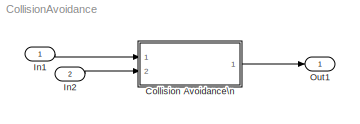
MODEL CollisionAvoidance
KIND model
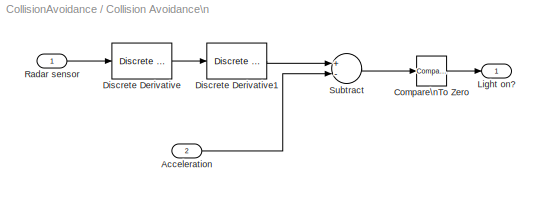
BLOCK [SubSystem] Collision Avoidance\n
  Ports = [2, 1]
  RequestExecContextInheritance = off
  SID = 1
BLOCK [Inport] Collision Avoidance\n/Acceleration
  IconDisplay = Port number
  Port = 2
  SID = 4
BLOCK [Reference] Collision Avoidance\n/Compare\nTo Zero  REF=simulink/Logic and Bit\nOperations/Compare\nTo Zero
  OutDataTypeStr = boolean
  Ports = [1, 1]
  SID = 6
  SourceBlock = simulink/Logic and Bit\nOperations/Compare\nTo Zero
  SourceType = Compare To Zero
  ZeroCross = on
  relop = <=
BLOCK [Reference] Collision Avoidance\n/Discrete Derivative  REF=simulink/Discrete/Discrete Derivative
  DoSatur = off
  ICPrevScaledInput = 0.0
  InputProcessing = Inherited
  LockScale = off
  OutDataType = fixdt(1, 16)
  OutDataTypeStr = Inherit: Inherit via internal rule
  OutMax = []
  OutMin = []
  OutScaling = 2^-10
  OutputDataTypeScalingMode = Inherit via internal rule
  Ports = [1, 1]
  RndMeth = Floor
  SID = 16
  SourceBlock = simulink/Discrete/Discrete Derivative
  SourceType = Discrete Derivative
  gainval = 1.0
BLOCK [Reference] Collision Avoidance\n/Discrete Derivative1  REF=simulink/Discrete/Discrete Derivative
  DoSatur = off
  ICPrevScaledInput = 0.0
  InputProcessing = Inherited
  LockScale = off
  OutDataType = fixdt(1, 16)
  OutDataTypeStr = Inherit: Inherit via internal rule
  OutMax = []
  OutMin = []
  OutScaling = 2^-10
  OutputDataTypeScalingMode = Inherit via internal rule
  Ports = [1, 1]
  RndMeth = Floor
  SID = 17
  SourceBlock = simulink/Discrete/Discrete Derivative
  SourceType = Discrete Derivative
  gainval = 1.0
BLOCK [Outport] Collision Avoidance\n/Light on?
  IconDisplay = Port number
  SID = 12
BLOCK [Inport] Collision Avoidance\n/Radar sensor
  IconDisplay = Port number
  SID = 2
BLOCK [Sum] Collision Avoidance\n/Subtract
  InputSameDT = off
  Inputs = +-
  OutDataTypeStr = Inherit: Inherit via internal rule
  Ports = [2, 1]
  SID = 10
  SaturateOnIntegerOverflow = off
BLOCK [Inport] In1
  IconDisplay = Port number
  OutDataTypeStr = single
  SID = 14
BLOCK [Inport] In2
  IconDisplay = Port number
  OutDataTypeStr = single
  Port = 2
  SID = 15
BLOCK [Outport] Out1
  IconDisplay = Port number
  SID = 13
LINE Collision Avoidance\n/Acceleration:1 -> Collision Avoidance\n/Subtract:2
LINE Collision Avoidance\n/Compare\nTo Zero:1 -> Collision Avoidance\n/Light on?:1
LINE Collision Avoidance\n/Discrete Derivative1:1 -> Collision Avoidance\n/Subtract:1
LINE Collision Avoidance\n/Discrete Derivative:1 -> Collision Avoidance\n/Discrete Derivative1:1
LINE Collision Avoidance\n/Radar sensor:1 -> Collision Avoidance\n/Discrete Derivative:1
LINE Collision Avoidance\n/Subtract:1 -> Collision Avoidance\n/Compare\nTo Zero:1
LINE Collision Avoidance\n:1 -> Out1:1
LINE In1:1 -> Collision Avoidance\n:1
LINE In2:1 -> Collision Avoidance\n:2
